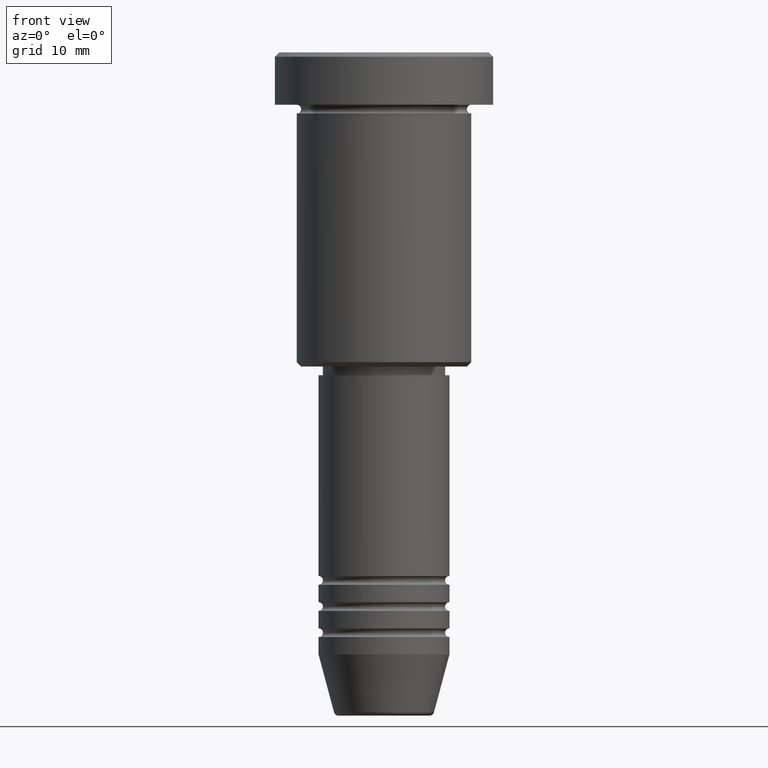
[diagram: clean part render]
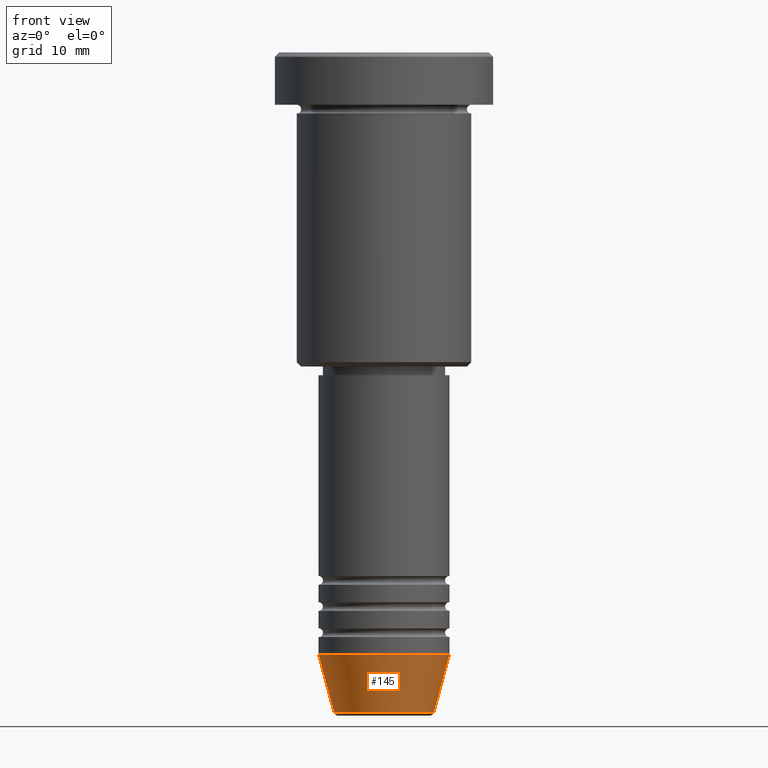
[diagram: same view with one face highlighted and labeled with its STEP entity id]
A machine part, front view. The second image highlights one B-rep face of the part: STEP entity #145.
In plain terms, the highlighted conical surface has half-angle 15 deg.
Its self-contained STEP definition (entity closure, byte-faithful):
#8 = LINE ( 'NONE', #921, #1012 ) ;
#54 = ORIENTED_EDGE ( 'NONE', *, *, #57, .F. ) ;
#57 = EDGE_CURVE ( 'NONE', #836, #802, #8, .T. ) ;
#77 = CARTESIAN_POINT ( 'NONE',  ( 0.000000000000000000, 0.000000000000000000, -75.62940952255127058 ) ) ;
#145 = ADVANCED_FACE ( 'NONE', ( #348 ), #351, .T. ) ;
#149 = DIRECTION ( 'NONE',  ( -0.000000000000000000, -0.000000000000000000, 1.000000000000000000 ) ) ;
#150 = VERTEX_POINT ( 'NONE', #1065 ) ;
#155 = CARTESIAN_POINT ( 'NONE',  ( 0.000000000000000000, 0.000000000000000000, -69.00000000000000000 ) ) ;
#159 = CIRCLE ( 'NONE', #950, 5.723655072137191269 ) ;
#162 = CARTESIAN_POINT ( 'NONE',  ( 0.000000000000000000, 0.000000000000000000, -69.00000000000000000 ) ) ;
#166 = VECTOR ( 'NONE', #759, 1000.000000000000000 ) ;
#277 = DIRECTION ( 'NONE',  ( -0.2588190451025213501, 3.169619151431772337E-17, 0.9659258262890680902 ) ) ;
#339 = EDGE_CURVE ( 'NONE', #836, #1134, #159, .T. ) ;
#348 = FACE_OUTER_BOUND ( 'NONE', #441, .T. ) ;
#351 = CONICAL_SURFACE ( 'NONE', #813, 7.500000000000000000, 0.2617993877991500740 ) ;
#380 = AXIS2_PLACEMENT_3D ( 'NONE', #162, #149, #795 ) ;
#391 = CARTESIAN_POINT ( 'NONE',  ( -5.723655072137190380, 8.097153428560735915E-16, -75.62940952255127058 ) ) ;
#416 = CIRCLE ( 'NONE', #380, 7.500000000000000000 ) ;
#439 = DIRECTION ( 'NONE',  ( -0.000000000000000000, -0.000000000000000000, 1.000000000000000000 ) ) ;
#441 = EDGE_LOOP ( 'NONE', ( #54, #466, #757, #1100 ) ) ;
#466 = ORIENTED_EDGE ( 'NONE', *, *, #339, .T. ) ;
#513 = DIRECTION ( 'NONE',  ( -0.000000000000000000, -0.000000000000000000, 1.000000000000000000 ) ) ;
#549 = EDGE_CURVE ( 'NONE', #1134, #150, #778, .T. ) ;
#570 = CARTESIAN_POINT ( 'NONE',  ( 7.500000000000000000, 0.000000000000000000, -69.00000000000000000 ) ) ;
#757 = ORIENTED_EDGE ( 'NONE', *, *, #549, .T. ) ;
#759 = DIRECTION ( 'NONE',  ( 0.2588190451025213501, 0.000000000000000000, 0.9659258262890680902 ) ) ;
#778 = LINE ( 'NONE', #570, #166 ) ;
#795 = DIRECTION ( 'NONE',  ( 1.000000000000000000, 0.000000000000000000, 0.000000000000000000 ) ) ;
#802 = VERTEX_POINT ( 'NONE', #1112 ) ;
#813 = AXIS2_PLACEMENT_3D ( 'NONE', #155, #513, #1051 ) ;
#836 = VERTEX_POINT ( 'NONE', #391 ) ;
#921 = CARTESIAN_POINT ( 'NONE',  ( -7.500000000000000000, 9.184850993605147944E-16, -69.00000000000000000 ) ) ;
#950 = AXIS2_PLACEMENT_3D ( 'NONE', #77, #439, #1136 ) ;
#972 = EDGE_CURVE ( 'NONE', #802, #150, #416, .T. ) ;
#1005 = CARTESIAN_POINT ( 'NONE',  ( 5.723655072137191269, 0.000000000000000000, -75.62940952255127058 ) ) ;
#1012 = VECTOR ( 'NONE', #277, 1000.000000000000000 ) ;
#1051 = DIRECTION ( 'NONE',  ( 1.000000000000000000, 0.000000000000000000, 0.000000000000000000 ) ) ;
#1065 = CARTESIAN_POINT ( 'NONE',  ( 7.500000000000000000, 0.000000000000000000, -69.00000000000000000 ) ) ;
#1100 = ORIENTED_EDGE ( 'NONE', *, *, #972, .F. ) ;
#1112 = CARTESIAN_POINT ( 'NONE',  ( -7.500000000000000000, 9.184850993605147944E-16, -69.00000000000000000 ) ) ;
#1134 = VERTEX_POINT ( 'NONE', #1005 ) ;
#1136 = DIRECTION ( 'NONE',  ( 1.000000000000000000, 0.000000000000000000, 0.000000000000000000 ) ) ;